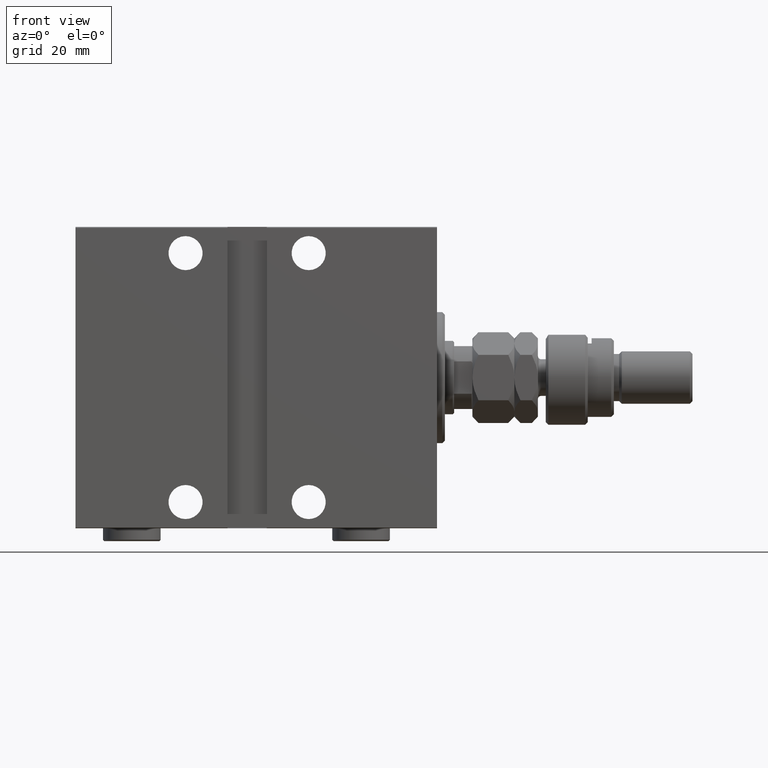
[diagram: clean part render]
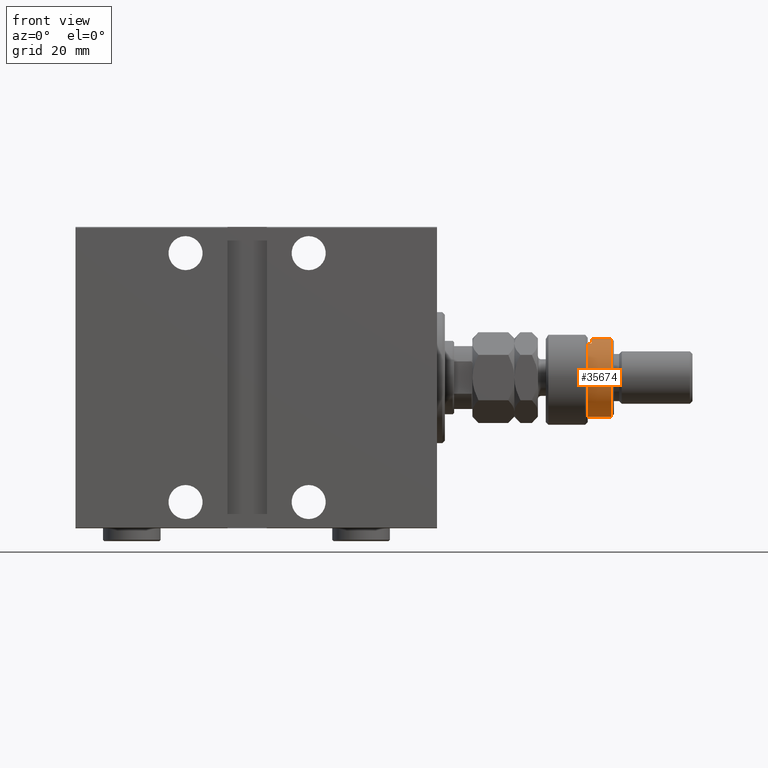
[diagram: same view with one face highlighted and labeled with its STEP entity id]
A machine part, front view. The second image highlights one B-rep face of the part: STEP entity #35674.
In plain terms, the highlighted cylindrical surface (partial cylindrical patch) has radius 15 mm, axis along (-1, -0, 0).
Its self-contained STEP definition (entity closure, byte-faithful):
#227 = EDGE_CURVE ( 'NONE', #31774, #10624, #17843, .T. ) ;
#1436 = ORIENTED_EDGE ( 'NONE', *, *, #9082, .T. ) ;
#2156 = DIRECTION ( 'NONE',  ( -1.000000000000000000, 0.000000000000000000, 0.000000000000000000 ) ) ;
#4193 = LINE ( 'NONE', #11600, #10654 ) ;
#4456 = CARTESIAN_POINT ( 'NONE',  ( 0.000000000000000000, 0.000000000000000000, 24.99999999999997868 ) ) ;
#5147 = DIRECTION ( 'NONE',  ( 0.000000000000000000, 0.000000000000000000, -1.000000000000000000 ) ) ;
#5749 = CARTESIAN_POINT ( 'NONE',  ( -15.00000000000000000, 0.000000000000000000, 26.00000000000000355 ) ) ;
#5776 = EDGE_LOOP ( 'NONE', ( #34239, #26445, #1436, #40058, #21835, #7115 ) ) ;
#6235 = DIRECTION ( 'NONE',  ( -0.000000000000000000, -0.000000000000000000, -1.000000000000000000 ) ) ;
#6335 = DIRECTION ( 'NONE',  ( -0.000000000000000000, -0.000000000000000000, -1.000000000000000000 ) ) ;
#6622 = VERTEX_POINT ( 'NONE', #18512 ) ;
#7115 = ORIENTED_EDGE ( 'NONE', *, *, #38631, .T. ) ;
#7802 = CIRCLE ( 'NONE', #42968, 15.00000000000000000 ) ;
#9082 = EDGE_CURVE ( 'NONE', #10624, #11623, #16973, .T. ) ;
#9432 = CARTESIAN_POINT ( 'NONE',  ( 15.00000000000000000, 1.836970198721029589E-15, 26.00000000000000355 ) ) ;
#9982 = CARTESIAN_POINT ( 'NONE',  ( -12.99038105676658006, -7.500000000000000000, 17.50000000000000000 ) ) ;
#10469 = CARTESIAN_POINT ( 'NONE',  ( -15.00000000000000000, 0.000000000000000000, 17.50000000000000000 ) ) ;
#10624 = VERTEX_POINT ( 'NONE', #11894 ) ;
#10654 = VECTOR ( 'NONE', #26171, 1000.000000000000000 ) ;
#10845 = DIRECTION ( 'NONE',  ( 0.000000000000000000, 0.000000000000000000, 1.000000000000000000 ) ) ;
#11600 = CARTESIAN_POINT ( 'NONE',  ( -12.99038105676658006, -7.500000000000000000, 26.00000000000000355 ) ) ;
#11623 = VERTEX_POINT ( 'NONE', #10469 ) ;
#11639 = CARTESIAN_POINT ( 'NONE',  ( 15.00000000000000000, 1.836970198721029589E-15, 24.99999999999997868 ) ) ;
#11894 = CARTESIAN_POINT ( 'NONE',  ( -15.00000000000000000, 0.000000000000000000, 24.99999999999997868 ) ) ;
#12326 = DIRECTION ( 'NONE',  ( 1.000000000000000000, 0.000000000000000000, 0.000000000000000000 ) ) ;
#15952 = VERTEX_POINT ( 'NONE', #9982 ) ;
#16964 = DIRECTION ( 'NONE',  ( 0.000000000000000000, 0.000000000000000000, -1.000000000000000000 ) ) ;
#16973 = LINE ( 'NONE', #5749, #33296 ) ;
#17843 = CIRCLE ( 'NONE', #40718, 15.00000000000000000 ) ;
#18512 = CARTESIAN_POINT ( 'NONE',  ( -12.99038105676658006, -7.500000000000000000, 16.00000000000000000 ) ) ;
#18964 = CIRCLE ( 'NONE', #43369, 15.00000000000000000 ) ;
#20331 = DIRECTION ( 'NONE',  ( -0.000000000000000000, -0.000000000000000000, -1.000000000000000000 ) ) ;
#21311 = CARTESIAN_POINT ( 'NONE',  ( 15.00000000000000000, 1.836970198721029589E-15, 16.00000000000000000 ) ) ;
#21835 = ORIENTED_EDGE ( 'NONE', *, *, #41369, .T. ) ;
#23822 = EDGE_CURVE ( 'NONE', #15952, #11623, #7802, .T. ) ;
#23905 = CARTESIAN_POINT ( 'NONE',  ( 0.000000000000000000, 0.000000000000000000, 17.50000000000000000 ) ) ;
#24009 = LINE ( 'NONE', #9432, #41242 ) ;
#26076 = EDGE_CURVE ( 'NONE', #31774, #39903, #24009, .T. ) ;
#26171 = DIRECTION ( 'NONE',  ( -0.000000000000000000, -0.000000000000000000, -1.000000000000000000 ) ) ;
#26445 = ORIENTED_EDGE ( 'NONE', *, *, #227, .T. ) ;
#26512 = AXIS2_PLACEMENT_3D ( 'NONE', #35145, #20331, #45163 ) ;
#31328 = FACE_OUTER_BOUND ( 'NONE', #5776, .T. ) ;
#31565 = CYLINDRICAL_SURFACE ( 'NONE', #26512, 15.00000000000000000 ) ;
#31774 = VERTEX_POINT ( 'NONE', #11639 ) ;
#32125 = CARTESIAN_POINT ( 'NONE',  ( 0.000000000000000000, 0.000000000000000000, 16.00000000000000000 ) ) ;
#33296 = VECTOR ( 'NONE', #6235, 1000.000000000000000 ) ;
#34239 = ORIENTED_EDGE ( 'NONE', *, *, #26076, .F. ) ;
#35145 = CARTESIAN_POINT ( 'NONE',  ( 0.000000000000000000, 0.000000000000000000, 26.00000000000000355 ) ) ;
#35674 = ADVANCED_FACE ( 'NONE', ( #31328 ), #31565, .T. ) ;
#38631 = EDGE_CURVE ( 'NONE', #6622, #39903, #18964, .T. ) ;
#39903 = VERTEX_POINT ( 'NONE', #21311 ) ;
#40058 = ORIENTED_EDGE ( 'NONE', *, *, #23822, .F. ) ;
#40718 = AXIS2_PLACEMENT_3D ( 'NONE', #4456, #5147, #12326 ) ;
#41242 = VECTOR ( 'NONE', #6335, 1000.000000000000000 ) ;
#41369 = EDGE_CURVE ( 'NONE', #15952, #6622, #4193, .T. ) ;
#42968 = AXIS2_PLACEMENT_3D ( 'NONE', #23905, #16964, #2156 ) ;
#43369 = AXIS2_PLACEMENT_3D ( 'NONE', #32125, #10845, #46655 ) ;
#45163 = DIRECTION ( 'NONE',  ( -1.000000000000000000, 0.000000000000000000, 0.000000000000000000 ) ) ;
#46655 = DIRECTION ( 'NONE',  ( 1.000000000000000000, 0.000000000000000000, 0.000000000000000000 ) ) ;